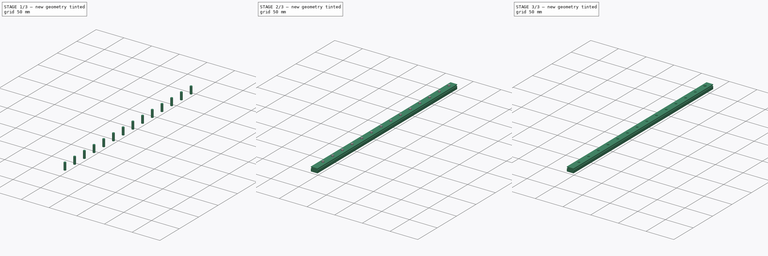
[diagram: build sequence overview — one tinted view per stage of 3, left to right]
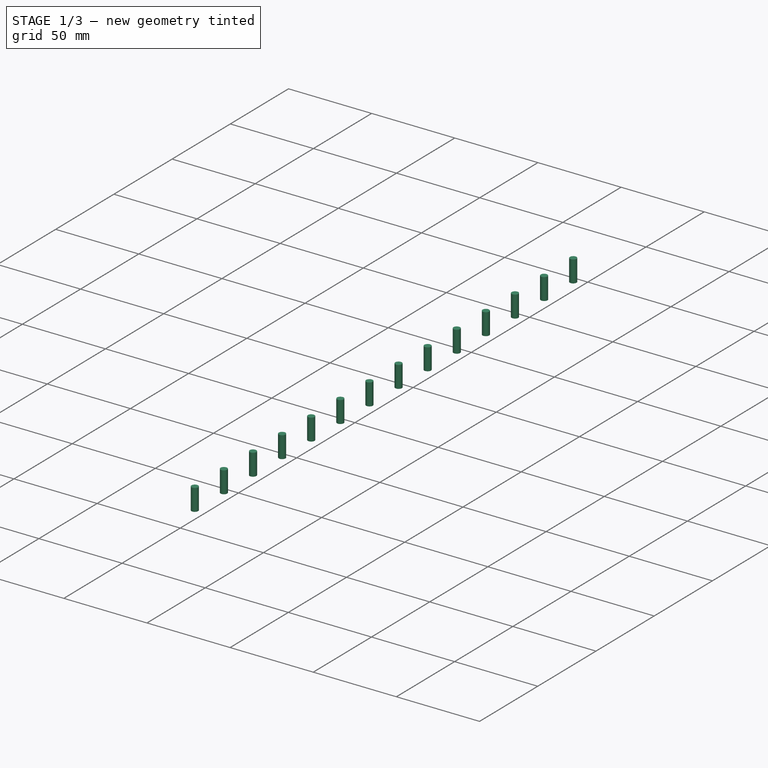
[diagram: stage 1 of 3 — iso view after this stage's code; geometry added in this stage tinted green]
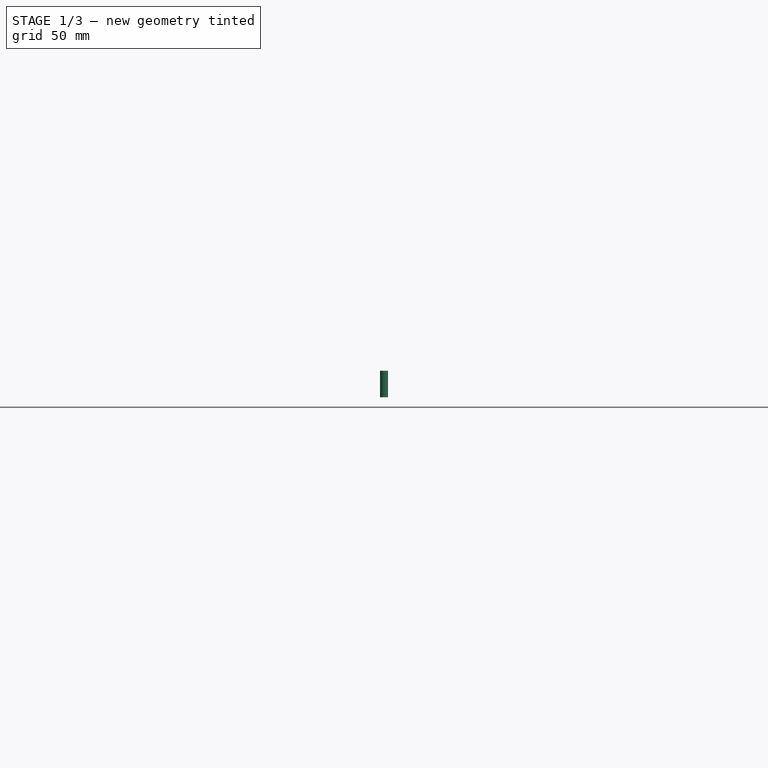
[diagram: stage 1 of 3 — front view after this stage's code; geometry added in this stage tinted green]
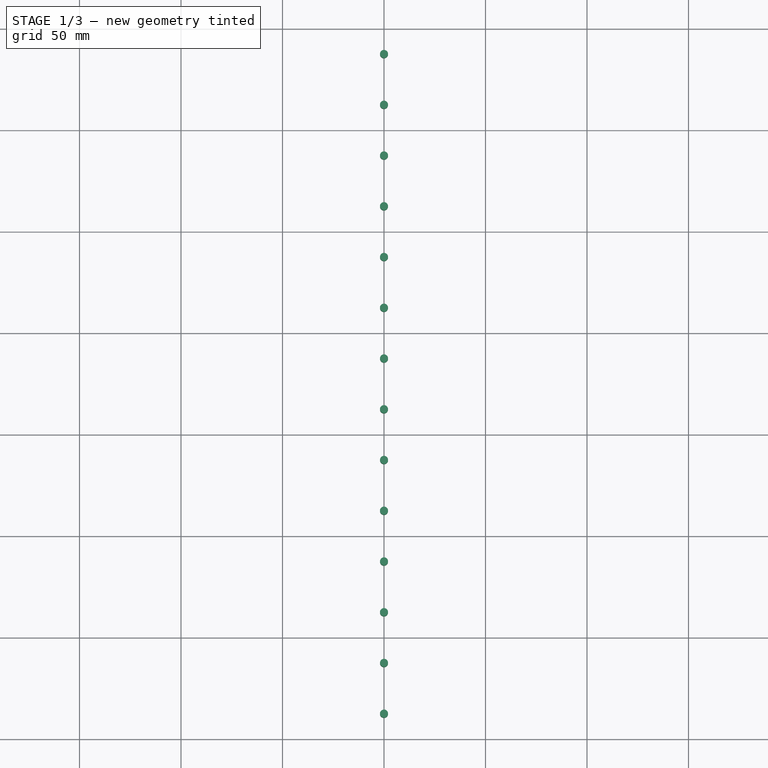
[diagram: stage 1 of 3 — top view after this stage's code; geometry added in this stage tinted green]
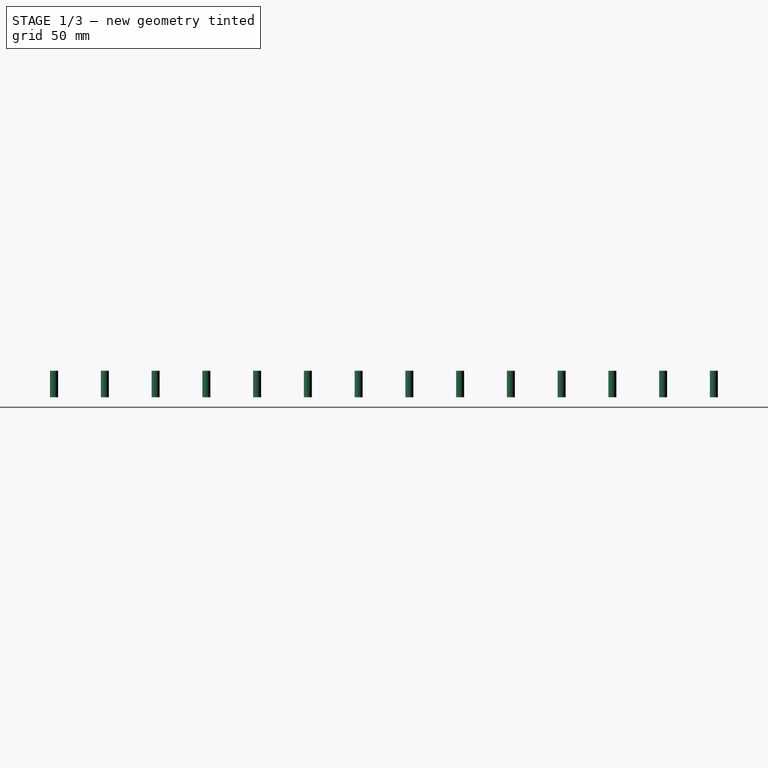
[diagram: stage 1 of 3 — right view after this stage's code; geometry added in this stage tinted green]
FCSTD DOCUMENT  (FreeCAD 0.14R3703 (Git))
Label: rail
License: CC-BY 3.0
LicenseURL: http://creativecommons.org/licenses/by/3.0/
objects: Part::Cylinder×2, Sketcher::SketchObject×1, PartDesign::Pad×1, Part::FeaturePython×1, Part::Cut×1, Part::Feature×1
note: 8 computed .brp shape members not serialized (recipe doc carries the construction recipe); baked Part::Feature solids carry a one-line shape summary decoded from their .brp

FEATURE [Part::Cylinder] Cylinder  label="Cilindro"
  Angle = 360
  Height = 13
  Placement = pos=(0,-12.5,-3) rot=(0,0,1;0rad)
  Radius = 2
FEATURE [Part::FeaturePython] Array  # Draft array (typed FeaturePython)
  Angle = 360
  ArrayType = 0
  Axis = (0,0,1)
  Base = -> Cylinder
  Center = (0,0,0)
  IntervalX = (0,0,0)
  IntervalY = (0,-25,0)
  IntervalZ = (0,0,1)
  NumberPolar = 0
  NumberX = 1
  NumberY = 14
  NumberZ = 0
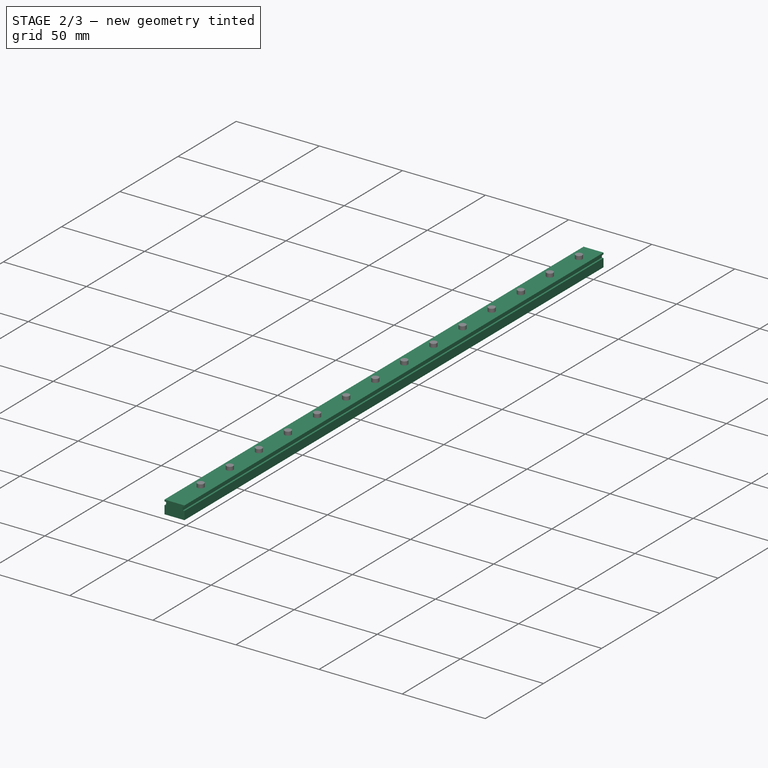
[diagram: stage 2 of 3 — iso view after this stage's code; geometry added in this stage tinted green]
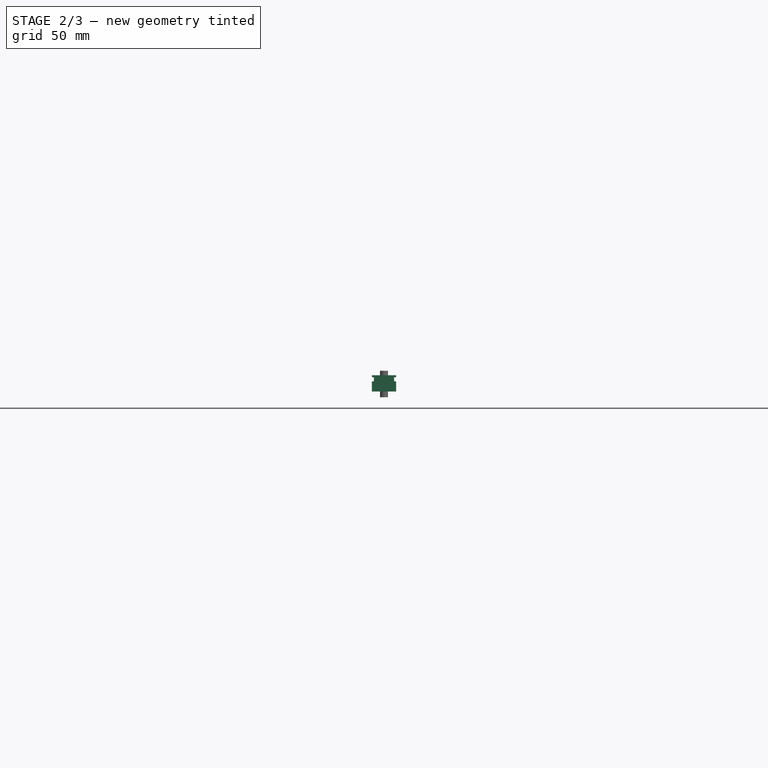
[diagram: stage 2 of 3 — front view after this stage's code; geometry added in this stage tinted green]
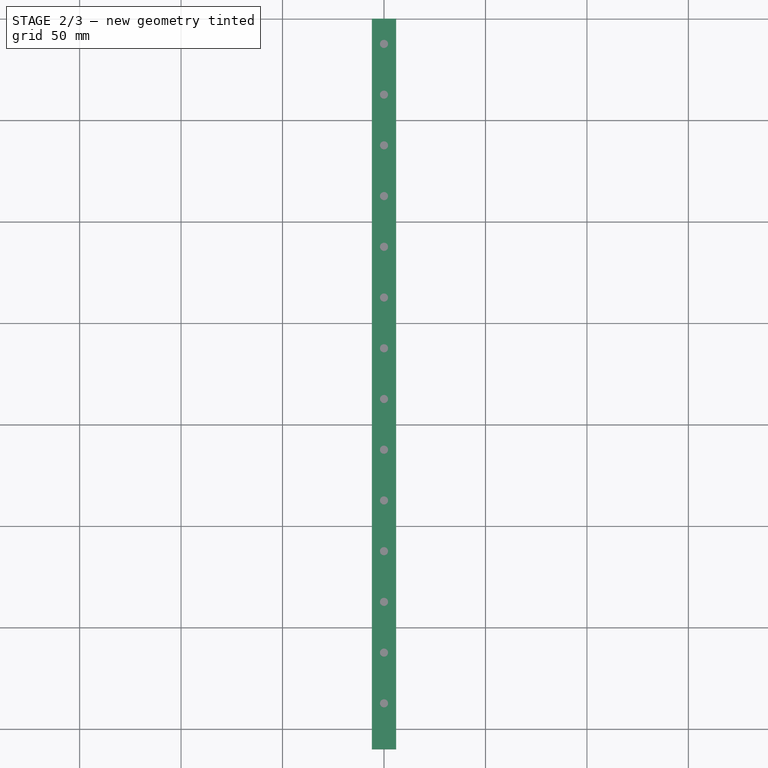
[diagram: stage 2 of 3 — top view after this stage's code; geometry added in this stage tinted green]
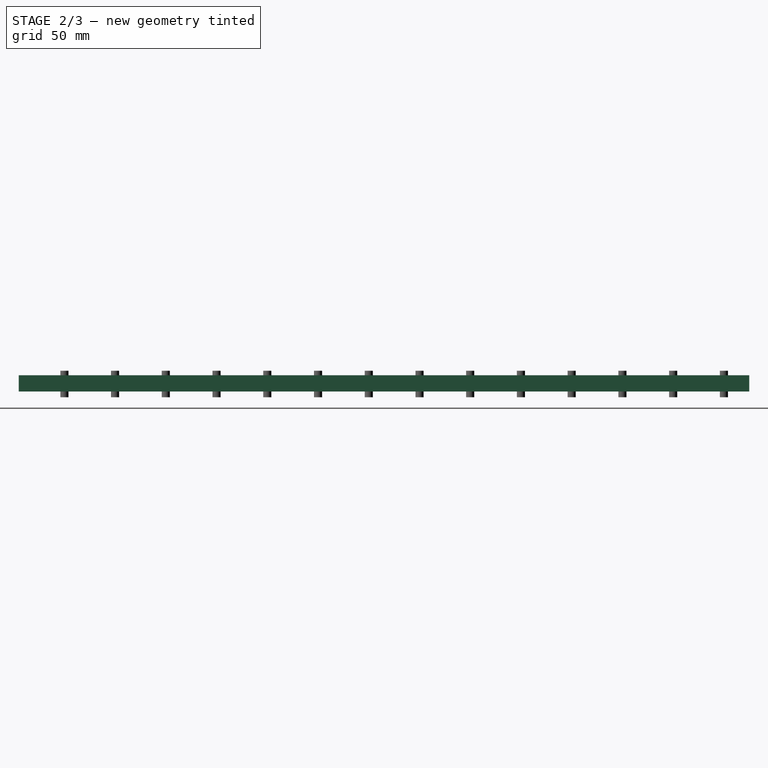
[diagram: stage 2 of 3 — right view after this stage's code; geometry added in this stage tinted green]
FEATURE [Sketcher::SketchObject] Sketch
  Placement = pos=(0,0,0) rot=(1,0,0;1.5708rad)
  sketch-geometry (12):
    g0: LineSegment StartX=-6 StartY=7.81864 StartZ=0 EndX=6 EndY=7.81864 EndZ=0
    g1: LineSegment StartX=6 StartY=7.81864 StartZ=0 EndX=6 EndY=6.81864 EndZ=0
    g2: LineSegment StartX=6 StartY=6.81864 StartZ=0 EndX=5 EndY=6.81864 EndZ=0
    g3: LineSegment StartX=5 StartY=6.81864 StartZ=0 EndX=5 EndY=4.81864 EndZ=0
    g4: LineSegment StartX=5 StartY=4.81864 StartZ=0 EndX=6 EndY=4.81864 EndZ=0
    g5: LineSegment StartX=6 StartY=4.81864 StartZ=0 EndX=6 EndY=-0.18136 EndZ=0
    g6: LineSegment StartX=6 StartY=-0.18136 StartZ=0 EndX=-6 EndY=-0.18136 EndZ=0
    g7: LineSegment StartX=-6 StartY=-0.18136 StartZ=0 EndX=-6 EndY=4.81864 EndZ=0
    g8: LineSegment StartX=-6 StartY=4.81864 StartZ=0 EndX=-5 EndY=4.81864 EndZ=0
    g9: LineSegment StartX=-5 StartY=4.81864 StartZ=0 EndX=-5 EndY=6.81864 EndZ=0
    g10: LineSegment StartX=-5 StartY=6.81864 StartZ=0 EndX=-6 EndY=6.81864 EndZ=0
    g11: LineSegment StartX=-6 StartY=6.81864 StartZ=0 EndX=-6 EndY=7.81864 EndZ=0
  constraints (37):
    c: Horizontal(g0)
    c: Coincident(g0,g1)
    c: Coincident(g1,g2)
    c: Horizontal(g2)
    c: Coincident(g2,g3)
    c: Coincident(g3,g4)
    c: Horizontal(g4)
    c: Coincident(g4,g5)
    c: Vertical(g5)
    c: Coincident(g5,g6)
    c: Horizontal(g6)
    c: Coincident(g6,g7)
    c: Vertical(g7)
    c: Coincident(g7,g8)
    c: Coincident(g8,g9)
    c: Coincident(g9,g10)
    c: Horizontal(g10)
    c: Coincident(g10,g11)
    c: Vertical(g11)
    c: Vertical(g1)
    c: Coincident(g11,g0)
    c: Symmetric(g0,g0,g-2)
    c: Vertical(g3)
    c: Vertical(g9)
    c: Horizontal(g8)
    c: DistanceX(g0,g0) = 12
    c: Symmetric(g6,g5,g-2)
    c: Equal(g0,g6)
    c: DistanceY(g5,g0) = 8
    c: DistanceY(g0,g10) = -1
    c: Equal(g11,g1)
    c: DistanceY(g9,g8) = -2
    c: Equal(g9,g3)
    c: DistanceX(g10,g9) = 1
    c: Equal(g10,g8)
    c: Equal(g10,g2)
    c: Equal(g2,g4)
FEATURE [PartDesign::Pad] Pad
  Length = 360
  Length2 = 100
  Placement = pos=(0,0,0) rot=(1,0,0;1.5708rad)
  Sketch = -> Sketch
  Type = 0
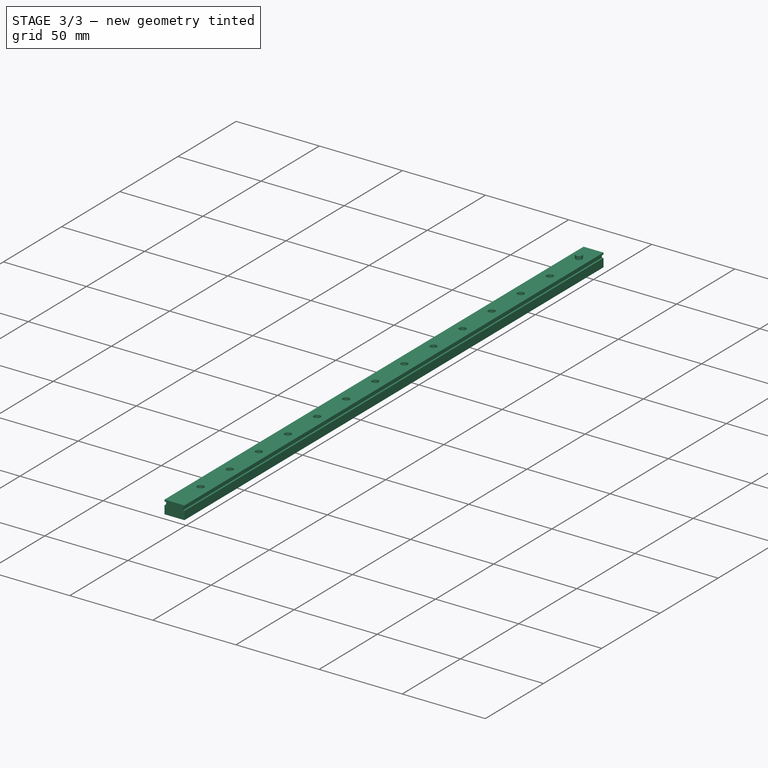
[diagram: stage 3 of 3 — iso view after this stage's code; geometry added in this stage tinted green]
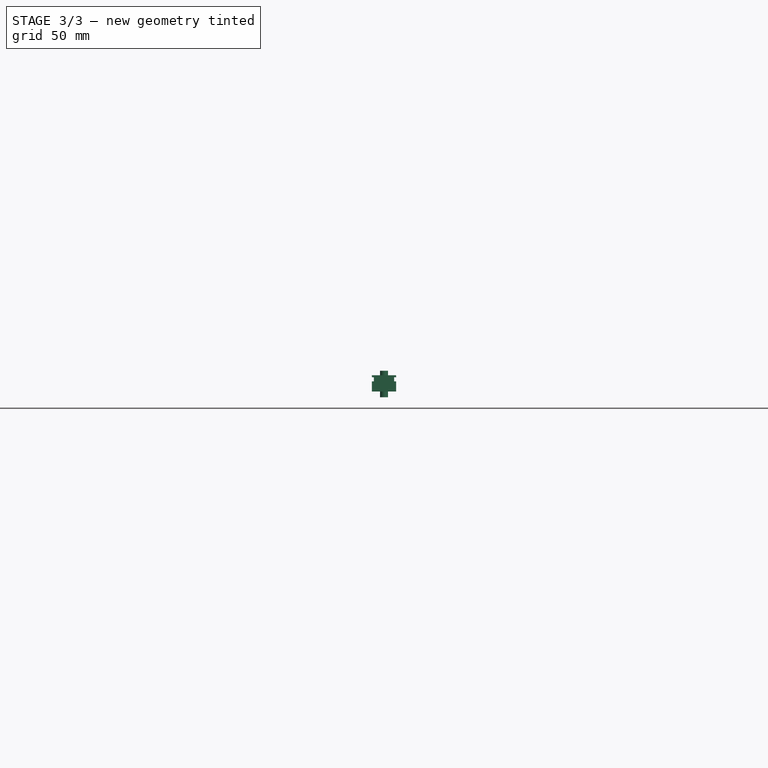
[diagram: stage 3 of 3 — front view after this stage's code; geometry added in this stage tinted green]
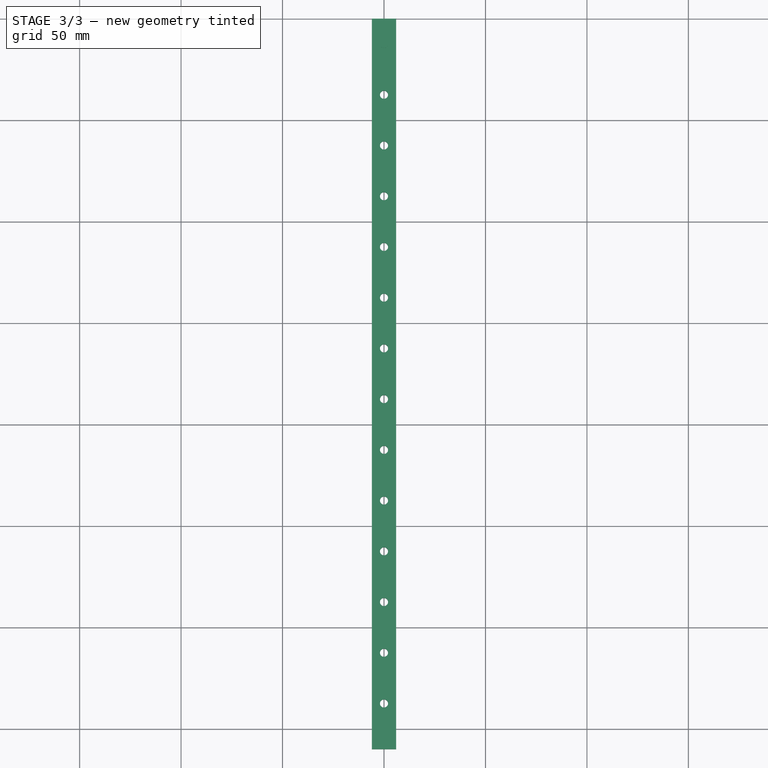
[diagram: stage 3 of 3 — top view after this stage's code; geometry added in this stage tinted green]
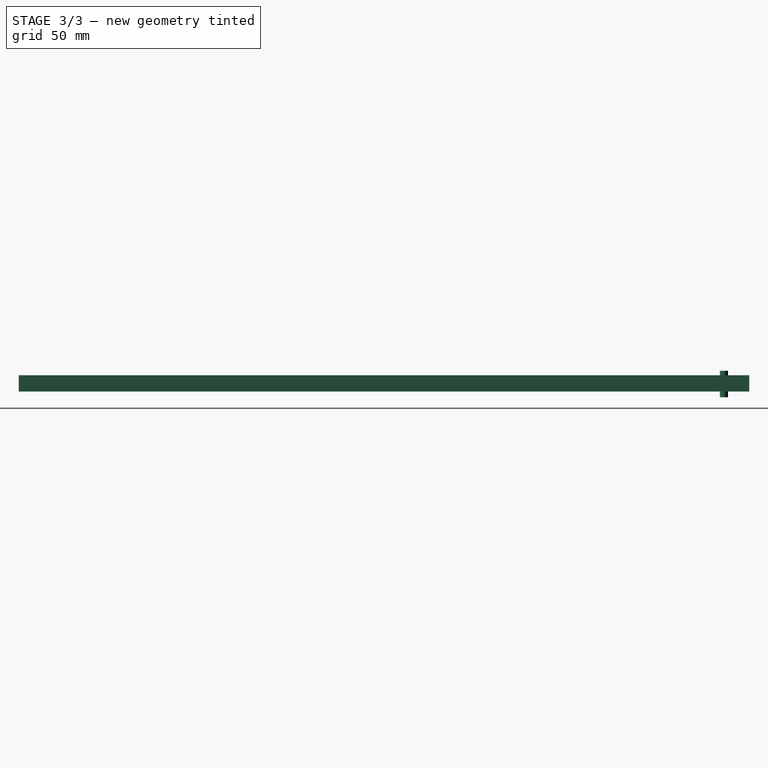
[diagram: stage 3 of 3 — right view after this stage's code; geometry added in this stage tinted green]
FEATURE [Part::Cylinder] Cylinder001  label="Cilindro001"
  Angle = 360
  Height = 13
  Placement = pos=(0,-12.5,-3) rot=(0,0,1;0rad)
  Radius = 2
FEATURE [Part::Cut] Cut
  Base = -> Pad
  Tool = -> Array
FEATURE [Part::Feature] Cut001  label="rail"
  shape: bbox 12 x 360 x 8 mm, 28 faces (baked)
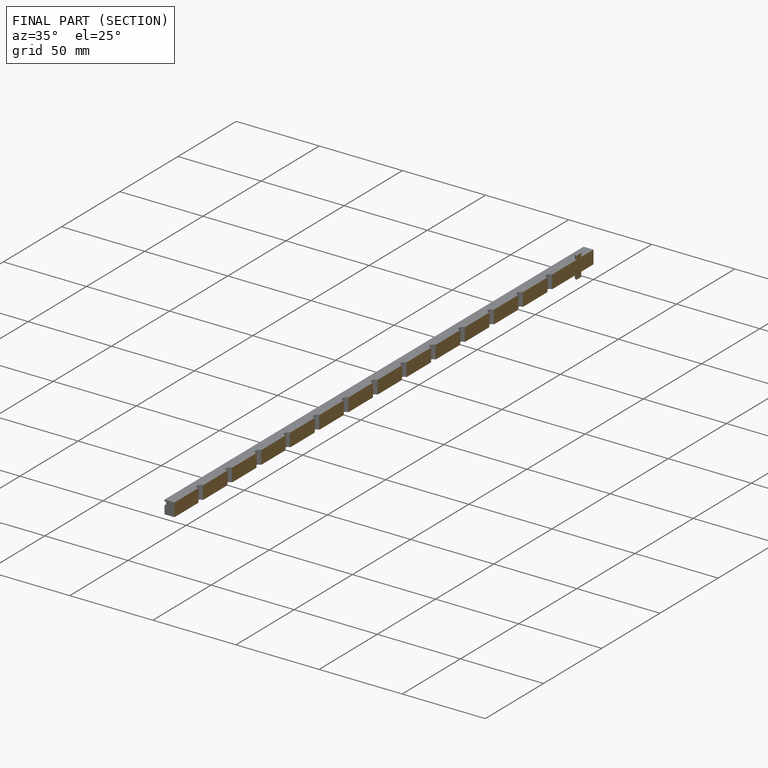
[diagram: finished part — half-section view (interior)]
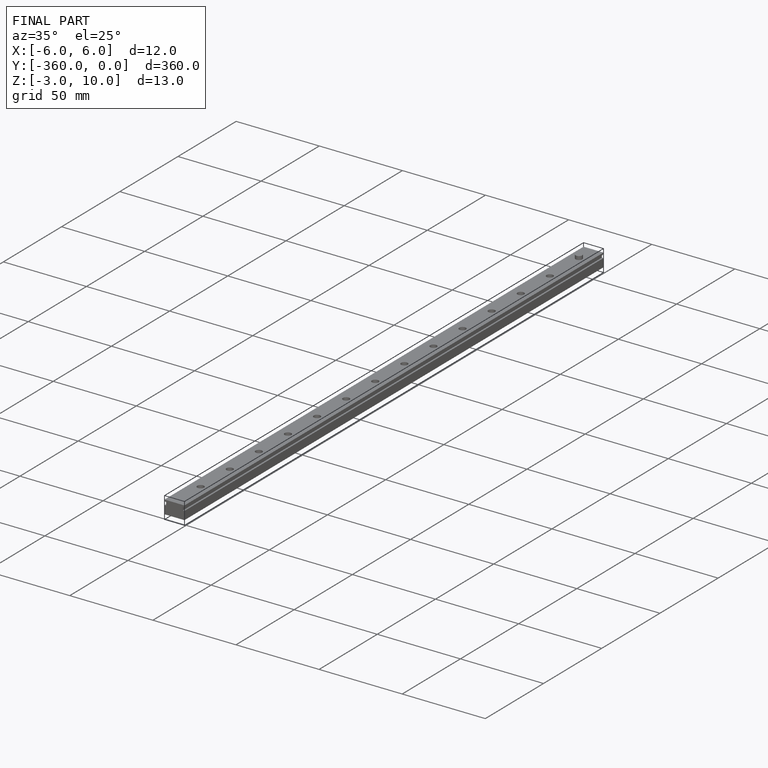
[diagram: finished part — iso view with bounding-box wireframe]
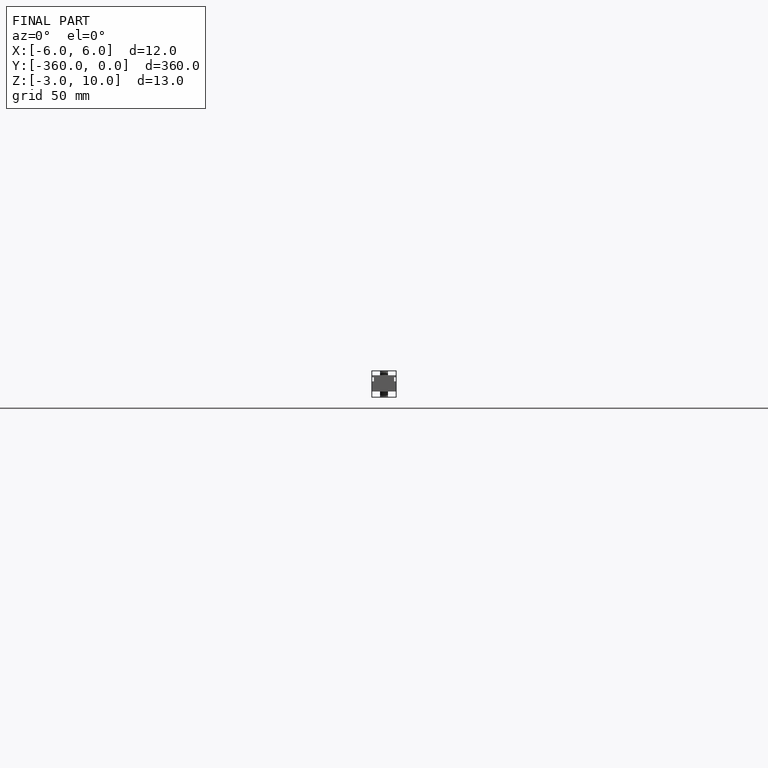
[diagram: finished part — front view with bounding-box wireframe]
